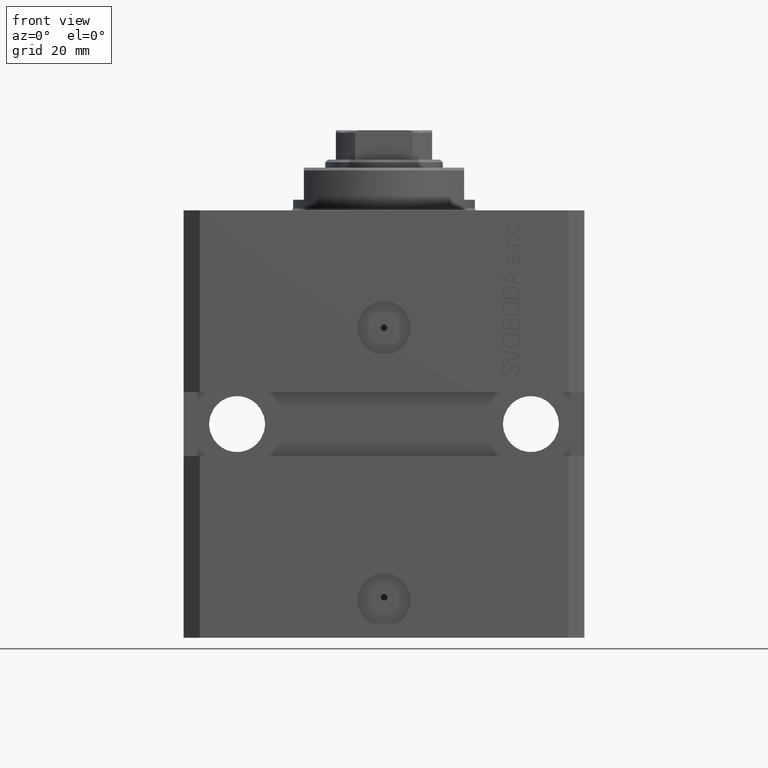
[diagram: clean part render]
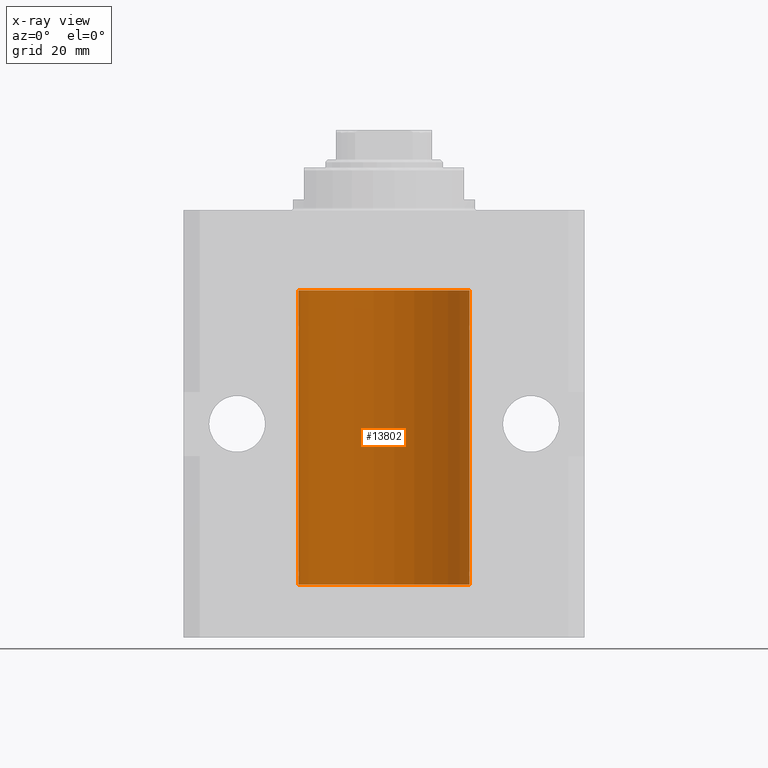
[diagram: x-ray — body ghosted, one internal face saturated and labeled with its STEP entity id]
A machine part, front view, then the same camera in x-ray: the body is ghosted and one INTERNAL B-rep face — a face not visible from any outside direction — is saturated and labeled: STEP entity #13802.
In plain terms, the highlighted cylindrical surface (partial cylindrical patch) has radius 16 mm, axis along (0, 0, 1).
Its self-contained STEP definition (entity closure, byte-faithful):
#251 = VERTEX_POINT ( 'NONE', #10714 ) ;
#655 = ORIENTED_EDGE ( 'NONE', *, *, #3178, .T. ) ;
#737 = CARTESIAN_POINT ( 'NONE',  ( -15.98844267028591126, 0.6088369347963314970, -68.16324735024328163 ) ) ;
#976 = CARTESIAN_POINT ( 'NONE',  ( -15.98778717651346426, 0.6250289588122136530, -68.08131585687053189 ) ) ;
#1183 = CARTESIAN_POINT ( 'NONE',  ( -15.99228023727724413, 0.5003781296993413674, -22.38347829554236057 ) ) ;
#1928 = ORIENTED_EDGE ( 'NONE', *, *, #18695, .T. ) ;
#2306 = ORIENTED_EDGE ( 'NONE', *, *, #12493, .T. ) ;
#2753 = CARTESIAN_POINT ( 'NONE',  ( 0.000000000000000000, 0.000000000000000000, -15.00000000000000000 ) ) ;
#2774 = ORIENTED_EDGE ( 'NONE', *, *, #44433, .F. ) ;
#3178 = EDGE_CURVE ( 'NONE', #18068, #4728, #12235, .T. ) ;
#3568 = CARTESIAN_POINT ( 'NONE',  ( -16.00000000000000000, 1.959434878635765131E-15, -70.09999999999999432 ) ) ;
#4728 = VERTEX_POINT ( 'NONE', #26015 ) ;
#5016 = CARTESIAN_POINT ( 'NONE',  ( -15.99934216141748244, 0.1636497843296417787, -21.39126528029306229 ) ) ;
#5046 = CARTESIAN_POINT ( 'NONE',  ( -15.99934216141748244, 0.1636497843296345067, -67.39126528029308361 ) ) ;
#5065 = EDGE_CURVE ( 'NONE', #27005, #4728, #22351, .T. ) ;
#6094 = ORIENTED_EDGE ( 'NONE', *, *, #5065, .F. ) ;
#6285 = CARTESIAN_POINT ( 'NONE',  ( 15.99999999999999289, 0.1631343969470015476, -21.37500000000020606 ) ) ;
#6355 = DIRECTION ( 'NONE',  ( 1.000000000000000000, 0.000000000000000000, 0.000000000000000000 ) ) ;
#6893 = CARTESIAN_POINT ( 'NONE',  ( 15.98778830858101685, 0.6250000000001204592, -22.16311639173018833 ) ) ;
#7540 = EDGE_CURVE ( 'NONE', #12617, #251, #24520, .T. ) ;
#7997 = CARTESIAN_POINT ( 'NONE',  ( 16.00000000000000000, -1.835653844722709729E-15, -68.62500000000000000 ) ) ;
#8182 = CARTESIAN_POINT ( 'NONE',  ( -15.99070426498502862, 0.5462220647145645813, -68.31460064614141459 ) ) ;
#8391 = CARTESIAN_POINT ( 'NONE',  ( -16.00000000000000711, 0.08259886010189904093, -21.37500000000000000 ) ) ;
#9321 = EDGE_CURVE ( 'NONE', #47015, #26306, #31364, .T. ) ;
#9815 = B_SPLINE_CURVE_WITH_KNOTS ( 'NONE', 3,
 ( #35271, #25194, #28554, #39328, #17525, #42914, #6285, #43387 ),
 .UNSPECIFIED., .F., .F.,
 ( 4, 2, 2, 4 ),
 ( 0.0009773326288699728335, 0.001221554802188567438, 0.001465776975507162259, 0.001954221322144344530 ),
 .UNSPECIFIED. ) ;
#10155 = CARTESIAN_POINT ( 'NONE',  ( 15.99228275317786441, 0.5002975944204781644, -67.61642014570176684 ) ) ;
#10612 = VECTOR ( 'NONE', #14313, 1000.000000000000000 ) ;
#10714 = CARTESIAN_POINT ( 'NONE',  ( 16.00000000000013145, 3.665532692826917502E-13, -67.37499999999657518 ) ) ;
#11864 = DIRECTION ( 'NONE',  ( -0.000000000000000000, -0.000000000000000000, 1.000000000000000000 ) ) ;
#11976 = LINE ( 'NONE', #36880, #38154 ) ;
#12235 = B_SPLINE_CURVE_WITH_KNOTS ( 'NONE', 3,
 ( #26349, #8391, #5016, #30410, #40704, #41171, #19142, #22983, #33769, #40463, #1183, #26821, #41416, #37831 ),
 .UNSPECIFIED., .F., .F.,
 ( 4, 2, 2, 2, 2, 2, 4 ),
 ( 1.597328219370744179E-19, 0.0002442776652680942405, 0.0004885553305361882643, 0.0009771106610723839011, 0.001221388326340481665, 0.001465665991608579430, 0.001954221322144767369 ),
 .UNSPECIFIED. ) ;
#12260 = VERTEX_POINT ( 'NONE', #25622 ) ;
#12493 = EDGE_CURVE ( 'NONE', #45368, #12260, #18366, .T. ) ;
#12617 = VERTEX_POINT ( 'NONE', #23852 ) ;
#12931 = CARTESIAN_POINT ( 'NONE',  ( -16.00000000000000000, -9.346608026143465119E-15, -67.37500000000000000 ) ) ;
#13609 = CARTESIAN_POINT ( 'NONE',  ( 15.99070366873610993, 0.5574063959866685236, -22.32639436837549951 ) ) ;
#13790 = AXIS2_PLACEMENT_3D ( 'NONE', #18685, #29495, #41193 ) ;
#13802 = ADVANCED_FACE ( 'NONE', ( #33647 ), #26932, .F. ) ;
#14313 = DIRECTION ( 'NONE',  ( -0.000000000000000000, -0.000000000000000000, 1.000000000000000000 ) ) ;
#14425 = EDGE_CURVE ( 'NONE', #29801, #45046, #11976, .T. ) ;
#14531 = VECTOR ( 'NONE', #23723, 1000.000000000000000 ) ;
#15352 = CARTESIAN_POINT ( 'NONE',  ( -15.99711699979840951, 0.3253759916140645525, -68.55856151623176231 ) ) ;
#15735 = ORIENTED_EDGE ( 'NONE', *, *, #9321, .T. ) ;
#16004 = EDGE_CURVE ( 'NONE', #21266, #12617, #23132, .T. ) ;
#16063 = CARTESIAN_POINT ( 'NONE',  ( -16.00000000000000000, -9.346608026143465119E-15, -67.37500000000000000 ) ) ;
#16469 = ORIENTED_EDGE ( 'NONE', *, *, #18584, .T. ) ;
#17195 = EDGE_CURVE ( 'NONE', #27005, #45046, #32796, .T. ) ;
#17525 = CARTESIAN_POINT ( 'NONE',  ( 15.99228275317787507, 0.5002975944204000047, -21.61642014570181303 ) ) ;
#18068 = VERTEX_POINT ( 'NONE', #43272 ) ;
#18366 = LINE ( 'NONE', #32988, #10612 ) ;
#18584 = EDGE_CURVE ( 'NONE', #26306, #45368, #9815, .T. ) ;
#18667 = DIRECTION ( 'NONE',  ( -0.000000000000000000, -0.000000000000000000, 1.000000000000000000 ) ) ;
#18685 = CARTESIAN_POINT ( 'NONE',  ( 0.000000000000000000, 0.000000000000000000, -70.09999999999999432 ) ) ;
#18695 = EDGE_CURVE ( 'NONE', #21477, #21266, #34510, .T. ) ;
#18976 = CARTESIAN_POINT ( 'NONE',  ( 15.99548458234361448, 0.3844468804816183471, -68.49947786696357355 ) ) ;
#19142 = CARTESIAN_POINT ( 'NONE',  ( -15.98779057735153941, 0.6249419637998100407, -21.83670145863507273 ) ) ;
#19171 = CARTESIAN_POINT ( 'NONE',  ( -16.00000000000013145, 3.685127046438747128E-13, -68.62500000000343903 ) ) ;
#21019 = CARTESIAN_POINT ( 'NONE',  ( 16.00000000000000000, 6.728408811789801767E-16, -22.62500000000000000 ) ) ;
#21146 = CARTESIAN_POINT ( 'NONE',  ( 16.00000000000013145, 3.665532692826917502E-13, -67.37499999999657518 ) ) ;
#21266 = VERTEX_POINT ( 'NONE', #26937 ) ;
#21477 = VERTEX_POINT ( 'NONE', #24161 ) ;
#22305 = VECTOR ( 'NONE', #25617, 1000.000000000000000 ) ;
#22351 = LINE ( 'NONE', #38142, #27117 ) ;
#22683 = ORIENTED_EDGE ( 'NONE', *, *, #24565, .T. ) ;
#22878 = CIRCLE ( 'NONE', #45808, 16.00000000000000000 ) ;
#22983 = CARTESIAN_POINT ( 'NONE',  ( -15.98778717651346071, 0.6250289588122140971, -22.08131585687052478 ) ) ;
#23078 = CARTESIAN_POINT ( 'NONE',  ( 16.00000000000000000, 0.000000000000000000, -70.09999999999999432 ) ) ;
#23132 = B_SPLINE_CURVE_WITH_KNOTS ( 'NONE', 3,
 ( #7997, #41254, #45074, #30258, #18976, #30023, #41730, #23302 ),
 .UNSPECIFIED., .F., .F.,
 ( 4, 2, 2, 4 ),
 ( 1.783888443149829469E-18, 0.0002443331572175257886, 0.0004886663144350497342, 0.0009773326288700682433 ),
 .UNSPECIFIED. ) ;
#23302 = CARTESIAN_POINT ( 'NONE',  ( 15.98778830858070954, 0.6250000000080517815, -67.99999999999916156 ) ) ;
#23723 = DIRECTION ( 'NONE',  ( -0.000000000000000000, -0.000000000000000000, 1.000000000000000000 ) ) ;
#23852 = CARTESIAN_POINT ( 'NONE',  ( 15.98778830858070954, 0.6250000000080517815, -67.99999999999916156 ) ) ;
#24161 = CARTESIAN_POINT ( 'NONE',  ( 16.00000000000000000, 0.000000000000000000, -70.09999999999999432 ) ) ;
#24215 = EDGE_CURVE ( 'NONE', #18068, #41906, #29922, .T. ) ;
#24379 = CARTESIAN_POINT ( 'NONE',  ( 15.99934183755190986, 0.1636877470526783007, -22.60872690654068151 ) ) ;
#24520 = B_SPLINE_CURVE_WITH_KNOTS ( 'NONE', 3,
 ( #47230, #28341, #35530, #31933, #10155, #46763, #46525, #21146 ),
 .UNSPECIFIED., .F., .F.,
 ( 4, 2, 2, 4 ),
 ( 0.0009773326288700682433, 0.001221554802188685399, 0.001465776975507302772, 0.001954221322144537518 ),
 .UNSPECIFIED. ) ;
#24565 = EDGE_CURVE ( 'NONE', #251, #47015, #33867, .T. ) ;
#25087 = CARTESIAN_POINT ( 'NONE',  ( 16.00000000000000711, 0.08261762387942241104, -22.62499999999997158 ) ) ;
#25194 = CARTESIAN_POINT ( 'NONE',  ( 15.98778830858104172, 0.6249999999996183053, -21.91847885046212951 ) ) ;
#25617 = DIRECTION ( 'NONE',  ( -0.000000000000000000, -0.000000000000000000, 1.000000000000000000 ) ) ;
#25622 = CARTESIAN_POINT ( 'NONE',  ( 16.00000000000000000, 0.000000000000000000, -15.00000000000000000 ) ) ;
#26015 = CARTESIAN_POINT ( 'NONE',  ( -16.00000000000013145, 3.685127034031037939E-13, -22.62500000000341771 ) ) ;
#26306 = VERTEX_POINT ( 'NONE', #34601 ) ;
#26349 = CARTESIAN_POINT ( 'NONE',  ( -16.00000000000000000, 1.643679961284177128E-16, -21.37499999999999645 ) ) ;
#26458 = DIRECTION ( 'NONE',  ( 1.000000000000000000, 0.000000000000000000, 0.000000000000000000 ) ) ;
#26764 = EDGE_LOOP ( 'NONE', ( #38500, #2774, #1928, #39574, #42343, #22683, #15735, #16469, #2306, #44950, #42742, #655, #6094, #31989 ) ) ;
#26804 = CIRCLE ( 'NONE', #13790, 16.00000000000000000 ) ;
#26821 = CARTESIAN_POINT ( 'NONE',  ( -15.99711699979842017, 0.3253759916140657737, -22.55856151623175521 ) ) ;
#26932 = CYLINDRICAL_SURFACE ( 'NONE', #41216, 16.00000000000000000 ) ;
#26937 = CARTESIAN_POINT ( 'NONE',  ( 16.00000000000000000, -1.835653844722709729E-15, -68.62500000000000000 ) ) ;
#27005 = VERTEX_POINT ( 'NONE', #12931 ) ;
#27117 = VECTOR ( 'NONE', #45073, 1000.000000000000000 ) ;
#28341 = CARTESIAN_POINT ( 'NONE',  ( 15.98778830858103817, 0.6249999999997223332, -67.91847885046213662 ) ) ;
#28554 = CARTESIAN_POINT ( 'NONE',  ( 15.98844460043492077, 0.6087869699336542206, -21.83657454967558564 ) ) ;
#28768 = CARTESIAN_POINT ( 'NONE',  ( 16.00000000000013145, 3.665532684555111376E-13, -21.37499999999658229 ) ) ;
#29495 = DIRECTION ( 'NONE',  ( 0.000000000000000000, 0.000000000000000000, 1.000000000000000000 ) ) ;
#29801 = VERTEX_POINT ( 'NONE', #37019 ) ;
#29922 = LINE ( 'NONE', #3568, #22305 ) ;
#30023 = CARTESIAN_POINT ( 'NONE',  ( 15.99070366873610283, 0.5574063959867601170, -68.32639436837555991 ) ) ;
#30258 = CARTESIAN_POINT ( 'NONE',  ( 15.99707608081895138, 0.3151028052310259620, -68.54594170697733091 ) ) ;
#30410 = CARTESIAN_POINT ( 'NONE',  ( -15.99707730059171240, 0.3150375992092407373, -21.45402333202571654 ) ) ;
#30437 = CARTESIAN_POINT ( 'NONE',  ( 16.00000000000000000, 0.000000000000000000, -70.09999999999999432 ) ) ;
#30438 = CARTESIAN_POINT ( 'NONE',  ( -15.99707730059171240, 0.3150375992092334654, -67.45402333202571299 ) ) ;
#30686 = CARTESIAN_POINT ( 'NONE',  ( -15.98779057735153586, 0.6249419637998054888, -67.83670145863507628 ) ) ;
#30923 = CARTESIAN_POINT ( 'NONE',  ( -15.99070653155268040, 0.5573233280232966491, -67.67348148680505915 ) ) ;
#31286 = CARTESIAN_POINT ( 'NONE',  ( -16.00000000000000000, 1.959434878635765131E-15, -15.00000000000000000 ) ) ;
#31364 = B_SPLINE_CURVE_WITH_KNOTS ( 'NONE', 3,
 ( #21019, #25087, #24379, #35403, #39684, #13609, #6893, #47110 ),
 .UNSPECIFIED., .F., .F.,
 ( 4, 2, 2, 4 ),
 ( 6.538667818360814107E-19, 0.0002443331572174917989, 0.0004886663144349829473, 0.0009773326288699728335 ),
 .UNSPECIFIED. ) ;
#31933 = CARTESIAN_POINT ( 'NONE',  ( 15.99070695999103542, 0.5461439696927204990, -67.68526802364047512 ) ) ;
#31989 = ORIENTED_EDGE ( 'NONE', *, *, #17195, .T. ) ;
#32182 = CARTESIAN_POINT ( 'NONE',  ( -16.00000000000013145, 3.685127046438747128E-13, -68.62500000000343903 ) ) ;
#32796 = B_SPLINE_CURVE_WITH_KNOTS ( 'NONE', 3,
 ( #16063, #41442, #5046, #30438, #41204, #30923, #30686, #976, #737, #8182, #45028, #15352, #44797, #19171 ),
 .UNSPECIFIED., .F., .F.,
 ( 4, 2, 2, 2, 2, 2, 4 ),
 ( 9.902737362640428303E-19, 0.0002442776652680895785, 0.0004885553305361781812, 0.0009771106610723552782, 0.001221388326340464752, 0.001465665991608574008, 0.001954221322144763465 ),
 .UNSPECIFIED. ) ;
#32988 = CARTESIAN_POINT ( 'NONE',  ( 16.00000000000000000, 0.000000000000000000, -70.09999999999999432 ) ) ;
#33647 = FACE_OUTER_BOUND ( 'NONE', #26764, .T. ) ;
#33769 = CARTESIAN_POINT ( 'NONE',  ( -15.98844267028591482, 0.6088369347963316081, -22.16324735024328518 ) ) ;
#33867 = LINE ( 'NONE', #23078, #35342 ) ;
#34510 = LINE ( 'NONE', #30437, #14531 ) ;
#34601 = CARTESIAN_POINT ( 'NONE',  ( 15.98778830858070954, 0.6250000000079481977, -21.99999999999914735 ) ) ;
#35271 = CARTESIAN_POINT ( 'NONE',  ( 15.98778830858070954, 0.6250000000079481977, -21.99999999999914735 ) ) ;
#35342 = VECTOR ( 'NONE', #41039, 1000.000000000000000 ) ;
#35403 = CARTESIAN_POINT ( 'NONE',  ( 15.99707608081894783, 0.3151028052309810534, -22.54594170697727762 ) ) ;
#35530 = CARTESIAN_POINT ( 'NONE',  ( 15.98844460043491367, 0.6087869699337551399, -67.83657454967556077 ) ) ;
#36880 = CARTESIAN_POINT ( 'NONE',  ( -16.00000000000000000, 1.959434878635765131E-15, -70.09999999999999432 ) ) ;
#37019 = CARTESIAN_POINT ( 'NONE',  ( -16.00000000000000000, 1.959434878635765131E-15, -70.09999999999999432 ) ) ;
#37831 = CARTESIAN_POINT ( 'NONE',  ( -16.00000000000013145, 3.685127034031037939E-13, -22.62500000000341771 ) ) ;
#37938 = CARTESIAN_POINT ( 'NONE',  ( 0.000000000000000000, 0.000000000000000000, -70.09999999999999432 ) ) ;
#38142 = CARTESIAN_POINT ( 'NONE',  ( -16.00000000000000000, 1.959434878635765131E-15, -70.09999999999999432 ) ) ;
#38154 = VECTOR ( 'NONE', #18667, 1000.000000000000000 ) ;
#38282 = EDGE_CURVE ( 'NONE', #12260, #41906, #22878, .T. ) ;
#38500 = ORIENTED_EDGE ( 'NONE', *, *, #14425, .F. ) ;
#39328 = CARTESIAN_POINT ( 'NONE',  ( 15.99070695999104252, 0.5461439696926363441, -21.68526802364053552 ) ) ;
#39574 = ORIENTED_EDGE ( 'NONE', *, *, #16004, .T. ) ;
#39620 = DIRECTION ( 'NONE',  ( 0.000000000000000000, 0.000000000000000000, 1.000000000000000000 ) ) ;
#39684 = CARTESIAN_POINT ( 'NONE',  ( 15.99548458234361092, 0.3844468804815581731, -22.49947786696349894 ) ) ;
#40463 = CARTESIAN_POINT ( 'NONE',  ( -15.99070426498503217, 0.5462220647145618058, -22.31460064614143590 ) ) ;
#40704 = CARTESIAN_POINT ( 'NONE',  ( -15.99548640841683067, 0.3843705577988847377, -21.50046628527008608 ) ) ;
#41039 = DIRECTION ( 'NONE',  ( -0.000000000000000000, -0.000000000000000000, 1.000000000000000000 ) ) ;
#41171 = CARTESIAN_POINT ( 'NONE',  ( -15.99070653155267685, 0.5573233280232986475, -21.67348148680506625 ) ) ;
#41193 = DIRECTION ( 'NONE',  ( 1.000000000000000000, 0.000000000000000000, 0.000000000000000000 ) ) ;
#41204 = CARTESIAN_POINT ( 'NONE',  ( -15.99548640841682712, 0.3843705577988820732, -67.50046628527007897 ) ) ;
#41216 = AXIS2_PLACEMENT_3D ( 'NONE', #37938, #11864, #26458 ) ;
#41254 = CARTESIAN_POINT ( 'NONE',  ( 16.00000000000001066, 0.08261762387943044628, -68.62500000000000000 ) ) ;
#41416 = CARTESIAN_POINT ( 'NONE',  ( -16.00000000000000000, 0.1631714642025800244, -22.62499999999985789 ) ) ;
#41442 = CARTESIAN_POINT ( 'NONE',  ( -16.00000000000000711, 0.08259886010189028405, -67.37500000000001421 ) ) ;
#41730 = CARTESIAN_POINT ( 'NONE',  ( 15.98778830858101685, 0.6250000000002223777, -68.16311639173024162 ) ) ;
#41791 = CARTESIAN_POINT ( 'NONE',  ( 16.00000000000000000, 6.728408811789801767E-16, -22.62500000000000000 ) ) ;
#41906 = VERTEX_POINT ( 'NONE', #31286 ) ;
#42343 = ORIENTED_EDGE ( 'NONE', *, *, #7540, .T. ) ;
#42742 = ORIENTED_EDGE ( 'NONE', *, *, #24215, .F. ) ;
#42914 = CARTESIAN_POINT ( 'NONE',  ( 15.99711856062700122, 0.3252985083513915687, -21.44140297987714661 ) ) ;
#43272 = CARTESIAN_POINT ( 'NONE',  ( -16.00000000000000000, 1.643679961284177128E-16, -21.37499999999999645 ) ) ;
#43387 = CARTESIAN_POINT ( 'NONE',  ( 16.00000000000013145, 3.665532684555111376E-13, -21.37499999999658229 ) ) ;
#44433 = EDGE_CURVE ( 'NONE', #21477, #29801, #26804, .T. ) ;
#44797 = CARTESIAN_POINT ( 'NONE',  ( -15.99999999999998934, 0.1631714642025807183, -68.62499999999984368 ) ) ;
#44950 = ORIENTED_EDGE ( 'NONE', *, *, #38282, .T. ) ;
#45028 = CARTESIAN_POINT ( 'NONE',  ( -15.99228023727723702, 0.5003781296993395911, -68.38347829554236057 ) ) ;
#45046 = VERTEX_POINT ( 'NONE', #32182 ) ;
#45073 = DIRECTION ( 'NONE',  ( -0.000000000000000000, -0.000000000000000000, 1.000000000000000000 ) ) ;
#45074 = CARTESIAN_POINT ( 'NONE',  ( 15.99934183755190986, 0.1636877470527013101, -68.60872690654070993 ) ) ;
#45368 = VERTEX_POINT ( 'NONE', #28768 ) ;
#45808 = AXIS2_PLACEMENT_3D ( 'NONE', #2753, #39620, #6355 ) ;
#46525 = CARTESIAN_POINT ( 'NONE',  ( 15.99999999999999645, 0.1631343969470158417, -67.37500000000021316 ) ) ;
#46763 = CARTESIAN_POINT ( 'NONE',  ( 15.99711856062700477, 0.3252985083514284281, -67.44140297987711108 ) ) ;
#47015 = VERTEX_POINT ( 'NONE', #41791 ) ;
#47110 = CARTESIAN_POINT ( 'NONE',  ( 15.98778830858070954, 0.6250000000079481977, -21.99999999999914735 ) ) ;
#47230 = CARTESIAN_POINT ( 'NONE',  ( 15.98778830858070954, 0.6250000000080517815, -67.99999999999916156 ) ) ;